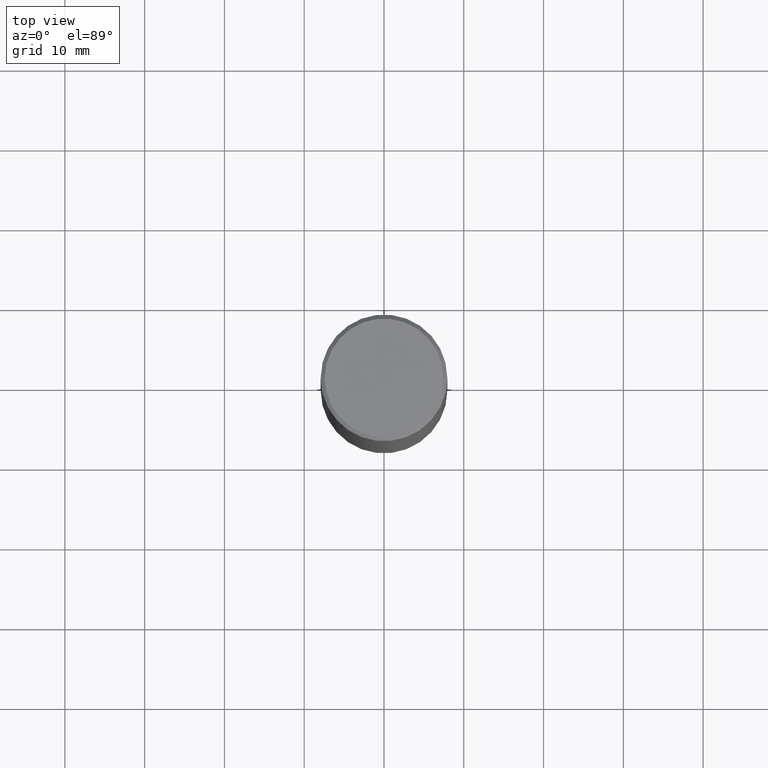
[diagram: clean part render]
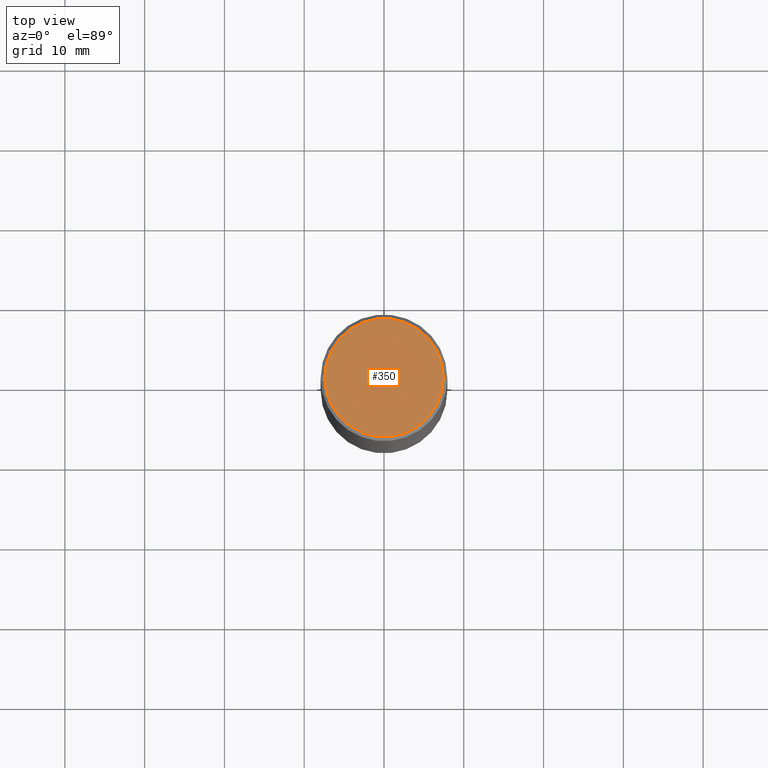
[diagram: same view with one face highlighted and labeled with its STEP entity id]
A machine part, top view. The second image highlights one B-rep face of the part: STEP entity #350.
In plain terms, the highlighted planar face has unit normal (0, -0, -1).
Its self-contained STEP definition (entity closure, byte-faithful):
#40 = CARTESIAN_POINT ( 'NONE',  ( -1.043851414335219820E-46, 1.490343170380447200E-32, 4.268512490100411279E-18 ) ) ;
#45 = DIRECTION ( 'NONE',  ( -2.445468806185136597E-29, 3.491481338843145583E-15, 1.000000000000000000 ) ) ;
#51 = FACE_OUTER_BOUND ( 'NONE', #74, .T. ) ;
#71 = CARTESIAN_POINT ( 'NONE',  ( -0.2924999999999998157, 2.077431396611662611E-15, 4.268512490086005323E-18 ) ) ;
#72 = CIRCLE ( 'NONE', #438, 0.2924999999999998157 ) ;
#74 = EDGE_LOOP ( 'NONE', ( #199, #239 ) ) ;
#97 = VERTEX_POINT ( 'NONE', #184 ) ;
#157 = PLANE ( 'NONE',  #197 ) ;
#180 = DIRECTION ( 'NONE',  ( -2.445468806185136597E-29, 3.491481338843145583E-15, 1.000000000000000000 ) ) ;
#184 = CARTESIAN_POINT ( 'NONE',  ( 0.2924999999999998157, -2.110215457714318748E-15, 4.268512490114932791E-18 ) ) ;
#186 = DIRECTION ( 'NONE',  ( 1.000000000000000000, -6.982962677686266711E-15, 4.876067333457692840E-29 ) ) ;
#192 = CARTESIAN_POINT ( 'NONE',  ( 2.042516583223231356E-15, 0.2924999999999998157, -1.019124035366569212E-15 ) ) ;
#197 = AXIS2_PLACEMENT_3D ( 'NONE', #192, #432, #224 ) ;
#199 = ORIENTED_EDGE ( 'NONE', *, *, #231, .T. ) ;
#215 = CARTESIAN_POINT ( 'NONE',  ( -1.043851414335219820E-46, 1.490343170380447200E-32, 4.268512490100411279E-18 ) ) ;
#224 = DIRECTION ( 'NONE',  ( -1.000000000000000000, 6.982962677686265922E-15, -4.876176775795935793E-29 ) ) ;
#231 = EDGE_CURVE ( 'NONE', #265, #97, #362, .T. ) ;
#239 = ORIENTED_EDGE ( 'NONE', *, *, #295, .T. ) ;
#265 = VERTEX_POINT ( 'NONE', #71 ) ;
#275 = DIRECTION ( 'NONE',  ( 1.000000000000000000, -6.982962677686266711E-15, 4.876067333457692840E-29 ) ) ;
#295 = EDGE_CURVE ( 'NONE', #97, #265, #72, .T. ) ;
#327 = AXIS2_PLACEMENT_3D ( 'NONE', #215, #45, #186 ) ;
#350 = ADVANCED_FACE ( 'NONE', ( #51 ), #157, .F. ) ;
#362 = CIRCLE ( 'NONE', #327, 0.2924999999999998157 ) ;
#432 = DIRECTION ( 'NONE',  ( 2.438088387897960049E-29, -3.491481338843145188E-15, -1.000000000000000000 ) ) ;
#438 = AXIS2_PLACEMENT_3D ( 'NONE', #40, #180, #275 ) ;